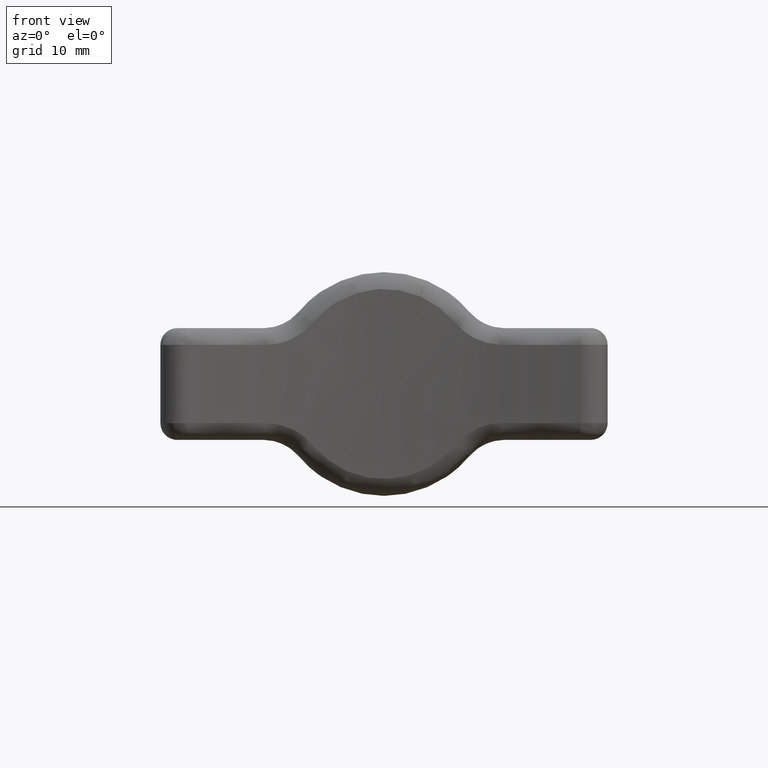
[diagram: clean part render]
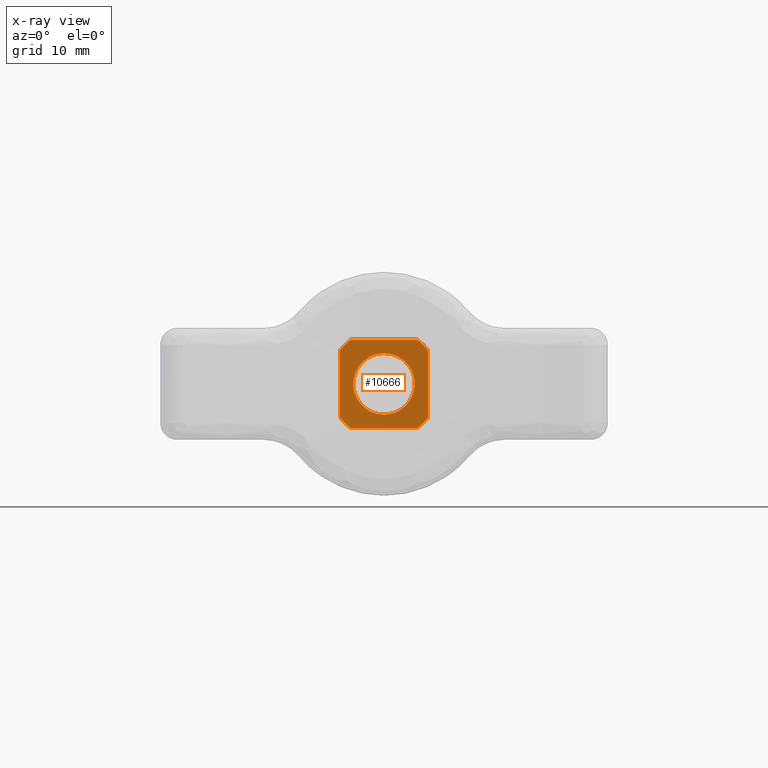
[diagram: x-ray — body ghosted, one internal face saturated and labeled with its STEP entity id]
A machine part, front view, then the same camera in x-ray: the body is ghosted and one INTERNAL B-rep face — a face not visible from any outside direction — is saturated and labeled: STEP entity #10666.
In plain terms, the highlighted face is a freeform B-spline surface patch.
Its self-contained STEP definition (entity closure, byte-faithful):
#1598=CARTESIAN_POINT('',(2.730776720404612,13.600000645965340,0.324590852742620));
#1599=VERTEX_POINT('',#1598);
#1605=CARTESIAN_POINT('',(0.0,13.600000645965340,-2.750000130618005));
#1606=VERTEX_POINT('',#1605);
#1607=CARTESIAN_POINT('',(2.730776720404612,13.600000645965334,0.324590852742620));
#1608=CARTESIAN_POINT('',(2.750000130618005,13.600000645965336,0.162864665302583));
#1609=CARTESIAN_POINT('',(2.750000130618005,13.600000645965340,0.0));
#1610=CARTESIAN_POINT('',(2.750000130618006,13.600000645965340,-2.750000130618006));
#1611=CARTESIAN_POINT('',(0.0,13.600000645965340,-2.750000130618005));
#1619=(BOUNDED_CURVE()B_SPLINE_CURVE(2,(#1607,#1608,#1609,#1610,#1611),.UNSPECIFIED.,.F.,.U.)B_SPLINE_CURVE_WITH_KNOTS((3,2,3),(0.229562678241146,0.250000000000000,0.500000000000000),.UNSPECIFIED.)CURVE()GEOMETRIC_REPRESENTATION_ITEM()RATIONAL_B_SPLINE_CURVE((0.956027155458640,0.976056188184492,1.0,0.707106781186547,1.0))REPRESENTATION_ITEM(''));
#1620=EDGE_CURVE('',#1599,#1606,#1619,.T.);
#1622=CARTESIAN_POINT('',(-2.744870826033251,13.600000645965340,-0.167883491715486));
#1623=VERTEX_POINT('',#1622);
#1624=CARTESIAN_POINT('',(0.0,13.600000645965340,-2.750000130618005));
#1625=CARTESIAN_POINT('',(-2.586941806824937,13.600000645965338,-2.750000130618005));
#1626=CARTESIAN_POINT('',(-2.744870826033251,13.600000645965345,-0.167883491715486));
#1634=(BOUNDED_CURVE()B_SPLINE_CURVE(2,(#1624,#1625,#1626),.UNSPECIFIED.,.F.,.U.)B_SPLINE_CURVE_WITH_KNOTS((3,3),(0.500000000000000,0.739332962239380),.UNSPECIFIED.)CURVE()GEOMETRIC_REPRESENTATION_ITEM()RATIONAL_B_SPLINE_CURVE((1.0,0.719603993286198,0.976072041667655))REPRESENTATION_ITEM(''));
#1635=EDGE_CURVE('',#1606,#1623,#1634,.T.);
#1709=CARTESIAN_POINT('',(0.0,13.600000645965340,2.750000130618005));
#1710=VERTEX_POINT('',#1709);
#1711=CARTESIAN_POINT('',(-2.744870826033251,13.600000645965336,-0.167883491715486));
#1712=CARTESIAN_POINT('',(-2.750000130618006,13.600000645965341,-0.084020103082509));
#1713=CARTESIAN_POINT('',(-2.750000130618005,13.600000645965340,0.0));
#1714=CARTESIAN_POINT('',(-2.750000130618006,13.600000645965340,2.750000130618006));
#1715=CARTESIAN_POINT('',(0.0,13.600000645965340,2.750000130618005));
#1723=(BOUNDED_CURVE()B_SPLINE_CURVE(2,(#1711,#1712,#1713,#1714,#1715),.UNSPECIFIED.,.F.,.U.)B_SPLINE_CURVE_WITH_KNOTS((3,2,3),(0.739332962239380,0.750000000000000,1.0),.UNSPECIFIED.)CURVE()GEOMETRIC_REPRESENTATION_ITEM()RATIONAL_B_SPLINE_CURVE((0.976072041667653,0.987502787900349,1.0,0.707106781186547,1.0))REPRESENTATION_ITEM(''));
#1724=EDGE_CURVE('',#1623,#1710,#1723,.T.);
#1726=CARTESIAN_POINT('',(0.0,13.600000645965340,2.750000130618005));
#1727=CARTESIAN_POINT('',(2.442483041955046,13.600000645965340,2.750000130618006));
#1728=CARTESIAN_POINT('',(2.730776720404612,13.600000645965334,0.324590852742620));
#1736=(BOUNDED_CURVE()B_SPLINE_CURVE(2,(#1726,#1727,#1728),.UNSPECIFIED.,.F.,.U.)B_SPLINE_CURVE_WITH_KNOTS((3,3),(0.0,0.229562678241146),.UNSPECIFIED.)CURVE()GEOMETRIC_REPRESENTATION_ITEM()RATIONAL_B_SPLINE_CURVE((1.0,0.731050593002055,0.956027155458640))REPRESENTATION_ITEM(''));
#1737=EDGE_CURVE('',#1710,#1599,#1736,.T.);
#1890=CARTESIAN_POINT('',(-3.950000187615005,13.600000645965340,-2.983286919733710));
#1891=VERTEX_POINT('',#1890);
#1905=CARTESIAN_POINT('',(-2.983286919733710,13.600000645965340,-3.950000187615005));
#1906=VERTEX_POINT('',#1905);
#1907=CARTESIAN_POINT('',(-2.983286919733708,13.600000645965340,-3.950000187615006));
#1908=CARTESIAN_POINT('',(-3.534038320963541,13.600000645965340,-3.534038320963541));
#1909=CARTESIAN_POINT('',(-3.950000187615004,13.600000645965340,-2.983286919733712));
#1917=(BOUNDED_CURVE()B_SPLINE_CURVE(2,(#1907,#1908,#1909),.UNSPECIFIED.,.F.,.U.)CURVE()GEOMETRIC_REPRESENTATION_ITEM()QUASI_UNIFORM_CURVE()RATIONAL_B_SPLINE_CURVE((1.0,0.990419009426212,1.0))REPRESENTATION_ITEM(''));
#1918=EDGE_CURVE('',#1906,#1891,#1917,.T.);
#1950=CARTESIAN_POINT('',(2.983286919733710,13.600000645965340,-3.950000187615005));
#1951=VERTEX_POINT('',#1950);
#1965=CARTESIAN_POINT('',(3.950000187615005,13.600000645965340,-2.983286919733705));
#1966=VERTEX_POINT('',#1965);
#1967=CARTESIAN_POINT('',(3.950000187615007,13.600000645965340,-2.983286919733707));
#1968=CARTESIAN_POINT('',(3.534038320963542,13.600000645965341,-3.534038320963541));
#1969=CARTESIAN_POINT('',(2.983286919733709,13.600000645965340,-3.950000187615006));
#1977=(BOUNDED_CURVE()B_SPLINE_CURVE(2,(#1967,#1968,#1969),.UNSPECIFIED.,.F.,.U.)CURVE()GEOMETRIC_REPRESENTATION_ITEM()QUASI_UNIFORM_CURVE()RATIONAL_B_SPLINE_CURVE((1.0,0.990419009426212,1.0))REPRESENTATION_ITEM(''));
#1978=EDGE_CURVE('',#1966,#1951,#1977,.T.);
#2029=CARTESIAN_POINT('',(3.950000187615005,13.600000645965340,2.983286919733710));
#2030=VERTEX_POINT('',#2029);
#2044=CARTESIAN_POINT('',(2.983286919733705,13.600000645965340,3.950000187615005));
#2045=VERTEX_POINT('',#2044);
#2046=CARTESIAN_POINT('',(2.983286919733707,13.600000645965340,3.950000187615007));
#2047=CARTESIAN_POINT('',(3.534038320963540,13.600000645965341,3.534038320963544));
#2048=CARTESIAN_POINT('',(3.950000187615005,13.600000645965340,2.983286919733710));
#2056=(BOUNDED_CURVE()B_SPLINE_CURVE(2,(#2046,#2047,#2048),.UNSPECIFIED.,.F.,.U.)CURVE()GEOMETRIC_REPRESENTATION_ITEM()QUASI_UNIFORM_CURVE()RATIONAL_B_SPLINE_CURVE((1.0,0.990419009426212,1.0))REPRESENTATION_ITEM(''));
#2057=EDGE_CURVE('',#2045,#2030,#2056,.T.);
#2089=CARTESIAN_POINT('',(-2.983286919733710,13.600000645965340,3.950000187615005));
#2090=VERTEX_POINT('',#2089);
#2104=CARTESIAN_POINT('',(-3.950000187614999,13.600000645965340,2.983286919733710));
#2105=VERTEX_POINT('',#2104);
#2106=CARTESIAN_POINT('',(-3.950000187615005,13.600000645965340,2.983286919733710));
#2107=CARTESIAN_POINT('',(-3.534038320963541,13.600000645965340,3.534038320963541));
#2108=CARTESIAN_POINT('',(-2.983286919733712,13.600000645965340,3.950000187615004));
#2116=(BOUNDED_CURVE()B_SPLINE_CURVE(2,(#2106,#2107,#2108),.UNSPECIFIED.,.F.,.U.)CURVE()GEOMETRIC_REPRESENTATION_ITEM()QUASI_UNIFORM_CURVE()RATIONAL_B_SPLINE_CURVE((1.0,0.990419009426212,1.0))REPRESENTATION_ITEM(''));
#2117=EDGE_CURVE('',#2105,#2090,#2116,.T.);
#10497=CARTESIAN_POINT('',(2.983286919733710,13.600000645965340,-3.950000187615005));
#10498=CARTESIAN_POINT('',(-2.983286919733710,13.600000645965340,-3.950000187615005));
#10499=QUASI_UNIFORM_CURVE('',1,(#10497,#10498),.UNSPECIFIED.,.F.,.U.);
#10500=EDGE_CURVE('',#1951,#1906,#10499,.T.);
#10527=CARTESIAN_POINT('',(-3.950000187615005,13.600000645965340,-2.983286919733710));
#10528=CARTESIAN_POINT('',(-3.950000187614999,13.600000645965340,2.983286919733710));
#10529=QUASI_UNIFORM_CURVE('',1,(#10527,#10528),.UNSPECIFIED.,.F.,.U.);
#10530=EDGE_CURVE('',#1891,#2105,#10529,.T.);
#10558=CARTESIAN_POINT('',(-2.983286919733710,13.600000645965340,3.950000187615005));
#10559=CARTESIAN_POINT('',(2.983286919733705,13.600000645965340,3.950000187615005));
#10560=QUASI_UNIFORM_CURVE('',1,(#10558,#10559),.UNSPECIFIED.,.F.,.U.);
#10561=EDGE_CURVE('',#2090,#2045,#10560,.T.);
#10588=CARTESIAN_POINT('',(3.950000187615005,13.600000645965340,2.983286919733710));
#10589=CARTESIAN_POINT('',(3.950000187615005,13.600000645965340,-2.983286919733705));
#10590=QUASI_UNIFORM_CURVE('',1,(#10588,#10589),.UNSPECIFIED.,.F.,.U.);
#10591=EDGE_CURVE('',#2030,#1966,#10590,.T.);
#10645=CARTESIAN_POINT('',(-4.344605339365113,13.600000645965340,4.344605339365113));
#10646=CARTESIAN_POINT('',(-4.344605339365113,13.600000645965340,-4.344605409996619));
#10647=CARTESIAN_POINT('',(4.344605409996619,13.600000645965340,4.344605339365113));
#10648=CARTESIAN_POINT('',(4.344605409996619,13.600000645965340,-4.344605409996619));
#10649=B_SPLINE_SURFACE_WITH_KNOTS('',1,1,((#10645,#10647),(#10646,#10648)),.UNSPECIFIED.,.F.,.F.,.U.,(2,2),(2,2),(0.0,8.689210749361731),(0.0,8.689210749361731),.UNSPECIFIED.);
#10650=ORIENTED_EDGE('',*,*,#10500,.T.);
#10651=ORIENTED_EDGE('',*,*,#1918,.T.);
#10652=ORIENTED_EDGE('',*,*,#10530,.T.);
#10653=ORIENTED_EDGE('',*,*,#2117,.T.);
#10654=ORIENTED_EDGE('',*,*,#10561,.T.);
#10655=ORIENTED_EDGE('',*,*,#2057,.T.);
#10656=ORIENTED_EDGE('',*,*,#10591,.T.);
#10657=ORIENTED_EDGE('',*,*,#1978,.T.);
#10658=EDGE_LOOP('',(#10650,#10651,#10652,#10653,#10654,#10655,#10656,#10657));
#10659=FACE_OUTER_BOUND('',#10658,.T.);
#10660=ORIENTED_EDGE('',*,*,#1635,.F.);
#10661=ORIENTED_EDGE('',*,*,#1620,.F.);
#10662=ORIENTED_EDGE('',*,*,#1737,.F.);
#10663=ORIENTED_EDGE('',*,*,#1724,.F.);
#10664=EDGE_LOOP('',(#10660,#10661,#10662,#10663));
#10665=FACE_BOUND('',#10664,.T.);
#10666=ADVANCED_FACE('',(#10659,#10665),#10649,.F.);